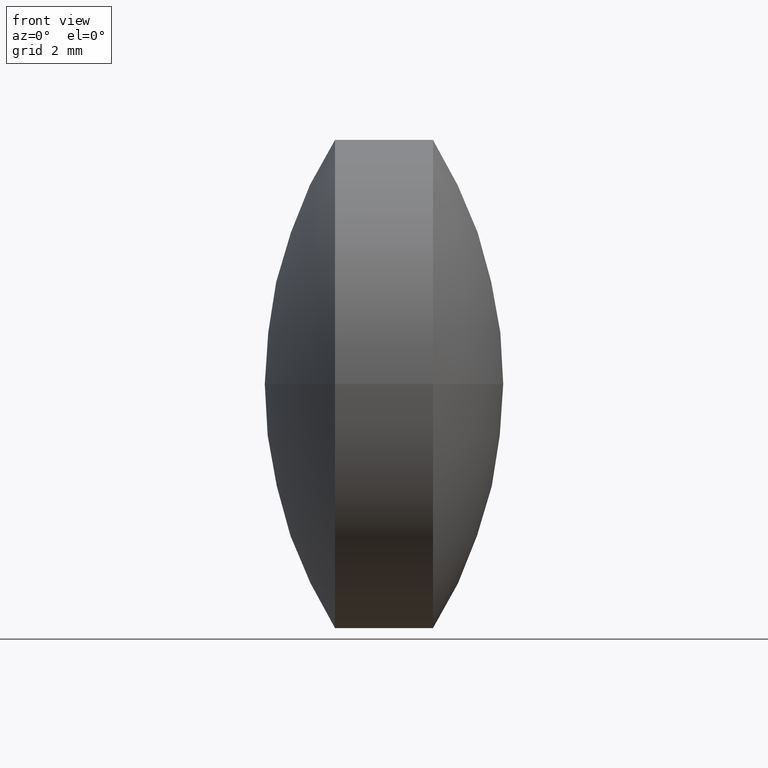
[diagram: clean part render]
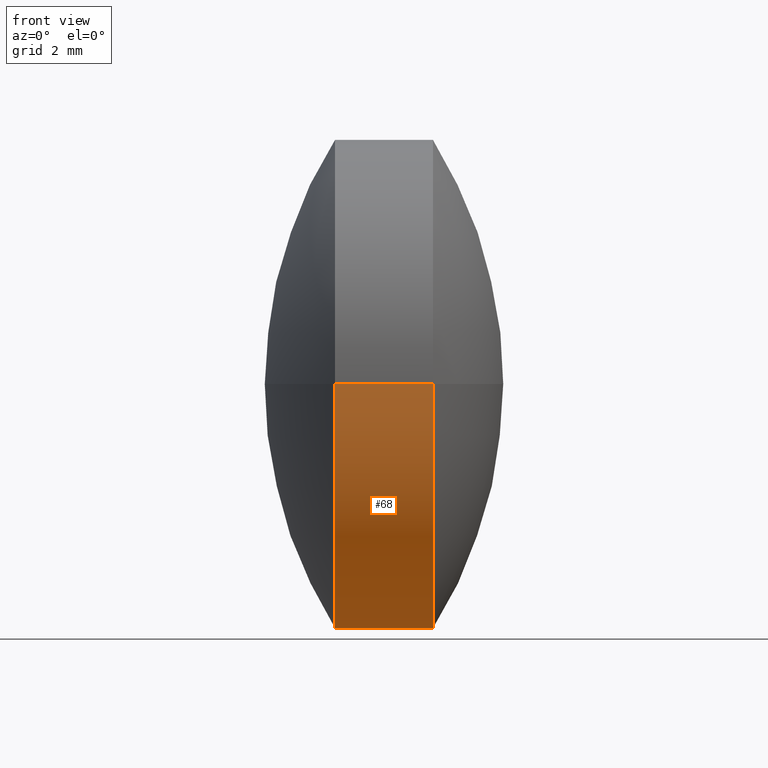
[diagram: same view with one face highlighted and labeled with its STEP entity id]
A machine part, front view. The second image highlights one B-rep face of the part: STEP entity #68.
In plain terms, the highlighted cylindrical surface (partial cylindrical patch) has radius 5 mm, axis along (-1, -0, -0).
Its self-contained STEP definition (entity closure, byte-faithful):
#24 = CARTESIAN_POINT ( 'NONE',  ( 27.04535757267421700, 19.14020197763176500, 0.0000000000000000000 ) ) ;
#34 = DIRECTION ( 'NONE',  ( -1.000000000000000000, -1.488330084728689300E-015, -0.0000000000000000000 ) ) ;
#39 = ORIENTED_EDGE ( 'NONE', *, *, #94, .T. ) ;
#46 = CYLINDRICAL_SURFACE ( 'NONE', #170, 5.000000000000004400 ) ;
#57 = CARTESIAN_POINT ( 'NONE',  ( 33.03865896640255800, 14.14020197763176900, -6.123233995736773200E-016 ) ) ;
#65 = EDGE_CURVE ( 'NONE', #117, #143, #159, .T. ) ;
#68 = ADVANCED_FACE ( 'NONE', ( #93 ), #46, .T. ) ;
#90 = AXIS2_PLACEMENT_3D ( 'NONE', #241, #172, #261 ) ;
#93 = FACE_OUTER_BOUND ( 'NONE', #123, .T. ) ;
#94 = EDGE_CURVE ( 'NONE', #98, #143, #274, .T. ) ;
#98 = VERTEX_POINT ( 'NONE', #198 ) ;
#103 = CARTESIAN_POINT ( 'NONE',  ( 35.03865896640254400, 24.14020197763177200, 6.123233995736756400E-016 ) ) ;
#108 = CARTESIAN_POINT ( 'NONE',  ( 33.03865896640254400, 24.14020197763178300, 0.0000000000000000000 ) ) ;
#117 = VERTEX_POINT ( 'NONE', #108 ) ;
#123 = EDGE_LOOP ( 'NONE', ( #165, #296, #39, #244 ) ) ;
#126 = DIRECTION ( 'NONE',  ( 1.387778780781444500E-015, -1.000000000000000000, 0.0000000000000000000 ) ) ;
#143 = VERTEX_POINT ( 'NONE', #57 ) ;
#145 = DIRECTION ( 'NONE',  ( -1.000000000000000000, -1.488330084728689300E-015, -0.0000000000000000000 ) ) ;
#147 = AXIS2_PLACEMENT_3D ( 'NONE', #220, #201, #267 ) ;
#155 = CARTESIAN_POINT ( 'NONE',  ( 27.04535757267420900, 24.14020197763177200, 6.123233995736772200E-016 ) ) ;
#159 = CIRCLE ( 'NONE', #90, 5.000000000000006200 ) ;
#165 = ORIENTED_EDGE ( 'NONE', *, *, #204, .F. ) ;
#170 = AXIS2_PLACEMENT_3D ( 'NONE', #24, #145, #126 ) ;
#172 = DIRECTION ( 'NONE',  ( -1.000000000000000000, -1.488330084728689300E-015, -0.0000000000000000000 ) ) ;
#174 = CARTESIAN_POINT ( 'NONE',  ( 27.04535757267422400, 14.14020197763176200, 0.0000000000000000000 ) ) ;
#198 = CARTESIAN_POINT ( 'NONE',  ( 35.03865896640255800, 14.14020197763178500, 0.0000000000000000000 ) ) ;
#201 = DIRECTION ( 'NONE',  ( -1.000000000000000000, -1.488330084728689300E-015, -0.0000000000000000000 ) ) ;
#204 = EDGE_CURVE ( 'NONE', #249, #117, #216, .T. ) ;
#212 = CIRCLE ( 'NONE', #147, 5.000000000000002700 ) ;
#213 = VECTOR ( 'NONE', #34, 1000.000000000000000 ) ;
#216 = LINE ( 'NONE', #155, #280 ) ;
#220 = CARTESIAN_POINT ( 'NONE',  ( 35.03865896640255100, 19.14020197763177600, 0.0000000000000000000 ) ) ;
#221 = DIRECTION ( 'NONE',  ( -1.000000000000000000, -1.488330084728689300E-015, -0.0000000000000000000 ) ) ;
#241 = CARTESIAN_POINT ( 'NONE',  ( 33.03865896640255100, 19.14020197763177600, 0.0000000000000000000 ) ) ;
#244 = ORIENTED_EDGE ( 'NONE', *, *, #65, .F. ) ;
#249 = VERTEX_POINT ( 'NONE', #103 ) ;
#261 = DIRECTION ( 'NONE',  ( 1.387778780781443900E-015, -1.000000000000000000, 0.0000000000000000000 ) ) ;
#267 = DIRECTION ( 'NONE',  ( 1.387778780781444900E-015, -1.000000000000000000, 0.0000000000000000000 ) ) ;
#274 = LINE ( 'NONE', #174, #213 ) ;
#278 = EDGE_CURVE ( 'NONE', #249, #98, #212, .T. ) ;
#280 = VECTOR ( 'NONE', #221, 1000.000000000000000 ) ;
#296 = ORIENTED_EDGE ( 'NONE', *, *, #278, .T. ) ;